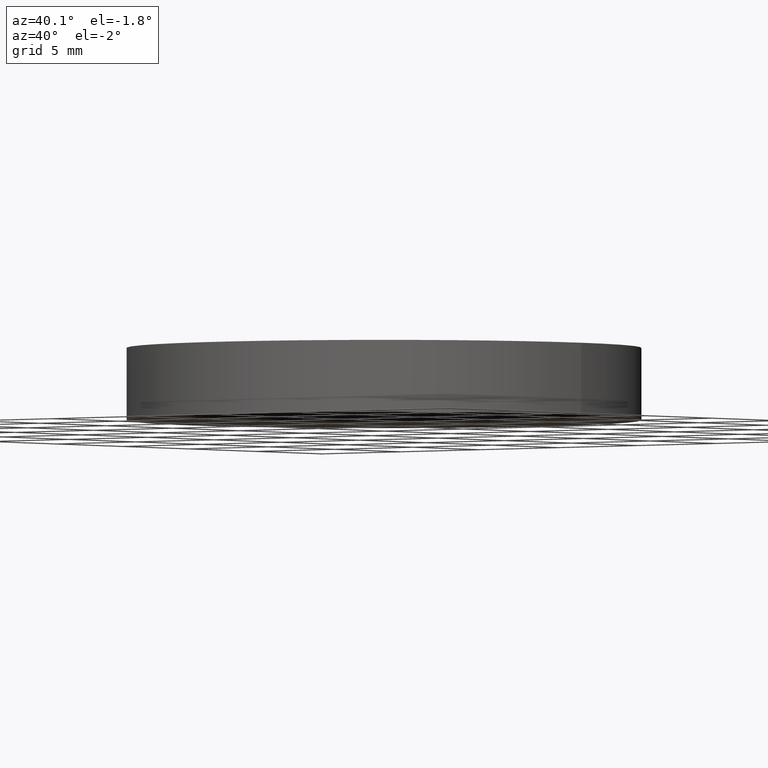
[diagram: clean part render]
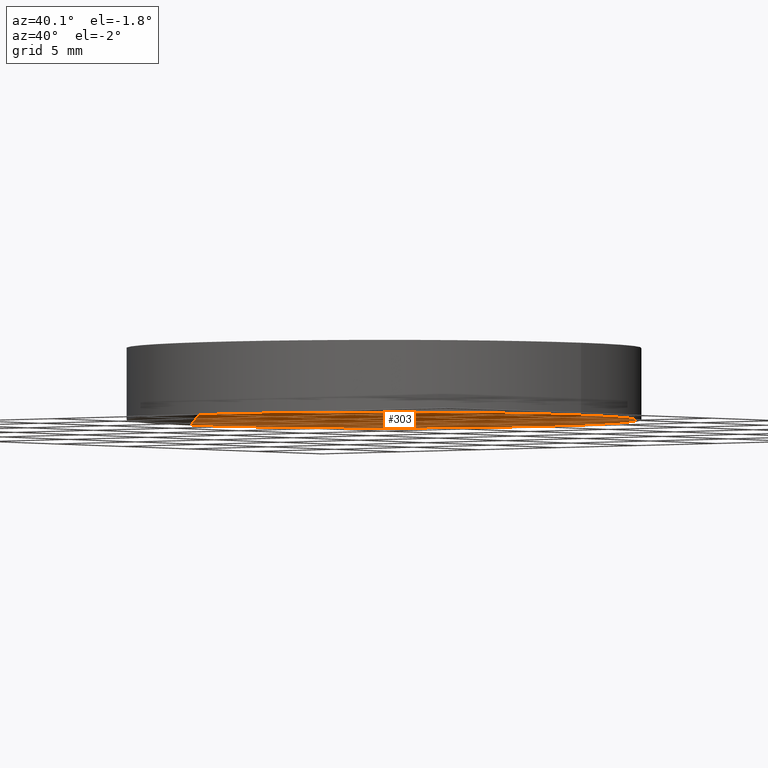
[diagram: same view with one face highlighted and labeled with its STEP entity id]
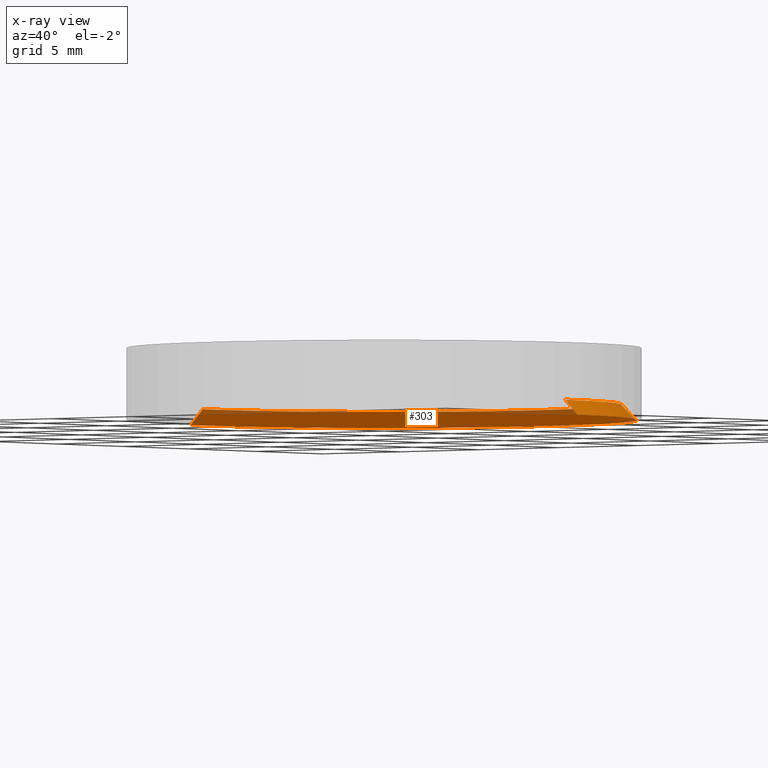
[diagram: x-ray of the same camera — body ghosted, the highlighted face saturated]
A machine part, auxiliary view. The second image highlights one B-rep face of the part: STEP entity #303.
The next image is the same camera in x-ray: the body ghosted, the highlighted face saturated — about 9% of this face is hidden behind the body in this view.
In plain terms, the highlighted conical surface has half-angle 45 deg.
Its self-contained STEP definition (entity closure, byte-faithful):
#13 = VERTEX_POINT ( 'NONE', #147 ) ;
#26 = VERTEX_POINT ( 'NONE', #280 ) ;
#39 = DIRECTION ( 'NONE',  ( 1.000000000000000000, 0.000000000000000000, 0.000000000000000000 ) ) ;
#46 = EDGE_CURVE ( 'NONE', #123, #285, #210, .T. ) ;
#95 = VECTOR ( 'NONE', #341, 1000.000000000000000 ) ;
#97 = DIRECTION ( 'NONE',  ( 0.000000000000000000, 0.000000000000000000, -1.000000000000000000 ) ) ;
#114 = DIRECTION ( 'NONE',  ( 0.000000000000000000, 0.000000000000000000, -1.000000000000000000 ) ) ;
#123 = VERTEX_POINT ( 'NONE', #320 ) ;
#135 = LINE ( 'NONE', #199, #344 ) ;
#144 = CARTESIAN_POINT ( 'NONE',  ( -11.50000000000000000, 0.000000000000000000, 0.7500000000000093259 ) ) ;
#146 = CARTESIAN_POINT ( 'NONE',  ( -12.25000000000000711, 0.000000000000000000, 0.000000000000000000 ) ) ;
#147 = CARTESIAN_POINT ( 'NONE',  ( 12.25000000000000711, 1.500192328955508523E-15, 0.000000000000000000 ) ) ;
#154 = ORIENTED_EDGE ( 'NONE', *, *, #195, .F. ) ;
#158 = EDGE_LOOP ( 'NONE', ( #162, #384, #321, #154 ) ) ;
#159 = EDGE_CURVE ( 'NONE', #26, #13, #135, .T. ) ;
#162 = ORIENTED_EDGE ( 'NONE', *, *, #159, .F. ) ;
#163 = CONICAL_SURFACE ( 'NONE', #359, 11.50000000000000000, 0.7853981633974471688 ) ;
#195 = EDGE_CURVE ( 'NONE', #13, #285, #296, .T. ) ;
#199 = CARTESIAN_POINT ( 'NONE',  ( 11.50000000000000000, 1.408343819019456176E-15, 0.7500000000000093259 ) ) ;
#207 = CARTESIAN_POINT ( 'NONE',  ( 0.000000000000000000, 0.000000000000000000, 0.7500000000000093259 ) ) ;
#209 = FACE_OUTER_BOUND ( 'NONE', #158, .T. ) ;
#210 = LINE ( 'NONE', #144, #95 ) ;
#247 = CIRCLE ( 'NONE', #343, 11.50000000000000000 ) ;
#262 = CARTESIAN_POINT ( 'NONE',  ( 0.000000000000000000, 0.000000000000000000, 0.000000000000000000 ) ) ;
#280 = CARTESIAN_POINT ( 'NONE',  ( 11.50000000000000000, 1.454268073987482448E-15, 0.7500000000000000000 ) ) ;
#285 = VERTEX_POINT ( 'NONE', #146 ) ;
#291 = DIRECTION ( 'NONE',  ( -1.000000000000000000, 0.000000000000000000, 0.000000000000000000 ) ) ;
#296 = CIRCLE ( 'NONE', #328, 12.25000000000000711 ) ;
#303 = ADVANCED_FACE ( 'NONE', ( #209 ), #163, .F. ) ;
#320 = CARTESIAN_POINT ( 'NONE',  ( -11.50000000000000000, 0.000000000000000000, 0.7500000000000000000 ) ) ;
#321 = ORIENTED_EDGE ( 'NONE', *, *, #46, .T. ) ;
#325 = CARTESIAN_POINT ( 'NONE',  ( 0.000000000000000000, 0.000000000000000000, 0.7500000000000000000 ) ) ;
#328 = AXIS2_PLACEMENT_3D ( 'NONE', #262, #332, #39 ) ;
#332 = DIRECTION ( 'NONE',  ( 0.000000000000000000, 0.000000000000000000, 1.000000000000000000 ) ) ;
#341 = DIRECTION ( 'NONE',  ( -0.7071067811865467956, 0.000000000000000000, -0.7071067811865483499 ) ) ;
#343 = AXIS2_PLACEMENT_3D ( 'NONE', #325, #97, #291 ) ;
#344 = VECTOR ( 'NONE', #366, 1000.000000000000000 ) ;
#359 = AXIS2_PLACEMENT_3D ( 'NONE', #207, #114, #369 ) ;
#366 = DIRECTION ( 'NONE',  ( 0.7071067811865467956, 8.659560562354925463E-17, -0.7071067811865483499 ) ) ;
#369 = DIRECTION ( 'NONE',  ( -1.000000000000000000, 0.000000000000000000, 0.000000000000000000 ) ) ;
#384 = ORIENTED_EDGE ( 'NONE', *, *, #420, .F. ) ;
#420 = EDGE_CURVE ( 'NONE', #123, #26, #247, .T. ) ;